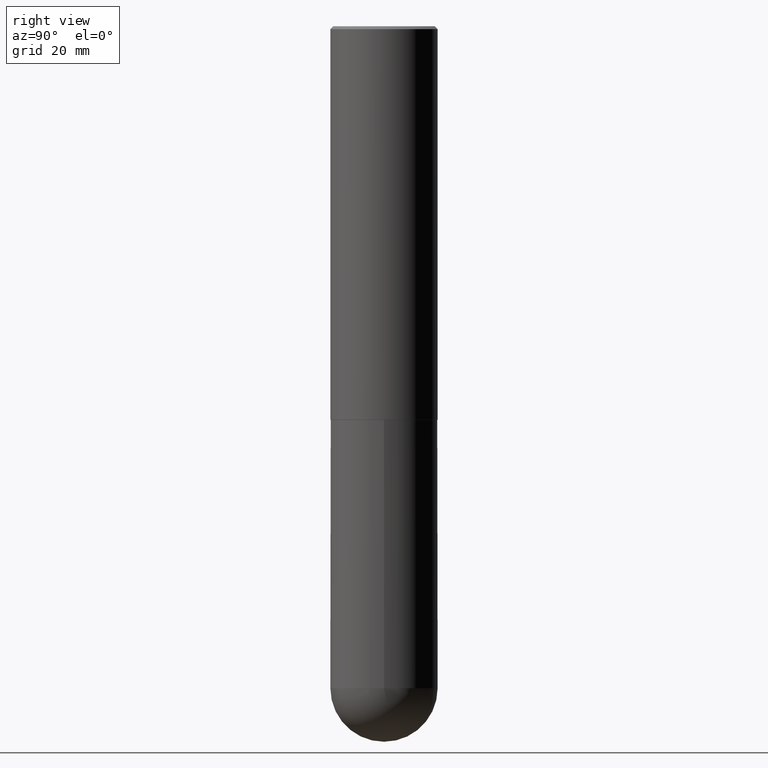
[diagram: clean part render]
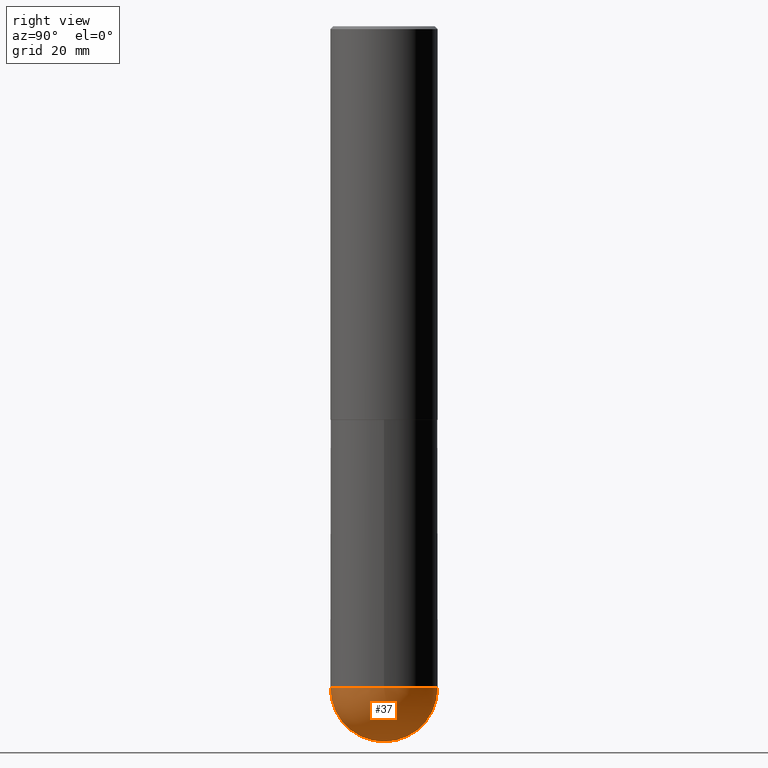
[diagram: same view with one face highlighted and labeled with its STEP entity id]
A machine part, right view. The second image highlights one B-rep face of the part: STEP entity #37.
In plain terms, the highlighted spherical surface has radius 9.525 mm.
Its self-contained STEP definition (entity closure, byte-faithful):
#7 = AXIS2_PLACEMENT_3D ( 'NONE', #391, #285, #170 ) ;
#19 = VERTEX_POINT ( 'NONE', #156 ) ;
#25 = EDGE_LOOP ( 'NONE', ( #297, #342, #185, #274 ) ) ;
#37 = ADVANCED_FACE ( 'NONE', ( #353 ), #226, .T. ) ;
#58 = DIRECTION ( 'NONE',  ( 1.000000000000000000, -6.982962677686270655E-15, 0.000000000000000000 ) ) ;
#64 = EDGE_CURVE ( 'NONE', #19, #173, #393, .T. ) ;
#88 = DIRECTION ( 'NONE',  ( -7.105427357600999492E-15, -1.000000000000000000, 0.000000000000000000 ) ) ;
#98 = DIRECTION ( 'NONE',  ( 6.982962677686265922E-15, 1.000000000000000000, 0.000000000000000000 ) ) ;
#103 = CARTESIAN_POINT ( 'NONE',  ( 2.618611004132463218E-15, 0.3749999999999838463, -4.625000000000000888 ) ) ;
#117 = AXIS2_PLACEMENT_3D ( 'NONE', #130, #281, #98 ) ;
#123 = DIRECTION ( 'NONE',  ( 6.982962677686266711E-15, 1.000000000000000000, -2.913971193241878005E-15 ) ) ;
#130 = CARTESIAN_POINT ( 'NONE',  ( 1.097917345069237163E-28, -1.662228356028959886E-14, -4.625000000000000000 ) ) ;
#134 = DIRECTION ( 'NONE',  ( -1.000000000000000000, 7.105427357601001070E-15, -4.926315508542082329E-29 ) ) ;
#156 = CARTESIAN_POINT ( 'NONE',  ( -2.664535259100265651E-15, -0.3750000000000165978, -4.624999999999999112 ) ) ;
#157 = EDGE_CURVE ( 'NONE', #269, #19, #240, .T. ) ;
#170 = DIRECTION ( 'NONE',  ( 1.000000000000000000, -6.982962677686270655E-15, 0.000000000000000000 ) ) ;
#173 = VERTEX_POINT ( 'NONE', #265 ) ;
#185 = ORIENTED_EDGE ( 'NONE', *, *, #337, .F. ) ;
#194 = CARTESIAN_POINT ( 'NONE',  ( 1.097917345069237163E-28, -1.662228356028959886E-14, -4.625000000000000000 ) ) ;
#195 = EDGE_CURVE ( 'NONE', #269, #372, #287, .T. ) ;
#205 = CARTESIAN_POINT ( 'NONE',  ( 1.131029322860625676E-28, -1.614810119214955014E-14, -4.625000000000000000 ) ) ;
#218 = AXIS2_PLACEMENT_3D ( 'NONE', #205, #336, #58 ) ;
#226 = SPHERICAL_SURFACE ( 'NONE', #307, 0.3750000000000003886 ) ;
#240 = CIRCLE ( 'NONE', #272, 0.3750000000000003886 ) ;
#265 = CARTESIAN_POINT ( 'NONE',  ( 0.3750000000000001110, -1.549344844111645238E-14, -4.625000000000000000 ) ) ;
#269 = VERTEX_POINT ( 'NONE', #350 ) ;
#272 = AXIS2_PLACEMENT_3D ( 'NONE', #411, #134, #88 ) ;
#274 = ORIENTED_EDGE ( 'NONE', *, *, #64, .F. ) ;
#281 = DIRECTION ( 'NONE',  ( 1.000000000000000000, -6.982962677686265922E-15, 4.883557194083112340E-29 ) ) ;
#285 = DIRECTION ( 'NONE',  ( -2.445468806185136597E-29, 3.491481338843145583E-15, 1.000000000000000000 ) ) ;
#287 = CIRCLE ( 'NONE', #117, 0.3750000000000003886 ) ;
#297 = ORIENTED_EDGE ( 'NONE', *, *, #157, .F. ) ;
#307 = AXIS2_PLACEMENT_3D ( 'NONE', #194, #358, #123 ) ;
#336 = DIRECTION ( 'NONE',  ( -2.445468806185136597E-29, 3.491481338843145583E-15, 1.000000000000000000 ) ) ;
#337 = EDGE_CURVE ( 'NONE', #173, #372, #386, .T. ) ;
#342 = ORIENTED_EDGE ( 'NONE', *, *, #195, .T. ) ;
#350 = CARTESIAN_POINT ( 'NONE',  ( 1.191225862093391378E-28, -1.790862693487176734E-14, -5.000000000000000000 ) ) ;
#353 = FACE_OUTER_BOUND ( 'NONE', #25, .T. ) ;
#358 = DIRECTION ( 'NONE',  ( -1.000000000000000000, 6.982962677686266711E-15, -4.883557194083113462E-29 ) ) ;
#372 = VERTEX_POINT ( 'NONE', #103 ) ;
#386 = CIRCLE ( 'NONE', #7, 0.3750000000000001110 ) ;
#391 = CARTESIAN_POINT ( 'NONE',  ( 1.131029322860625676E-28, -1.614810119214955014E-14, -4.625000000000000000 ) ) ;
#393 = CIRCLE ( 'NONE', #218, 0.3750000000000001110 ) ;
#411 = CARTESIAN_POINT ( 'NONE',  ( 1.097917345069237163E-28, -1.662228356028959886E-14, -4.625000000000000000 ) ) ;